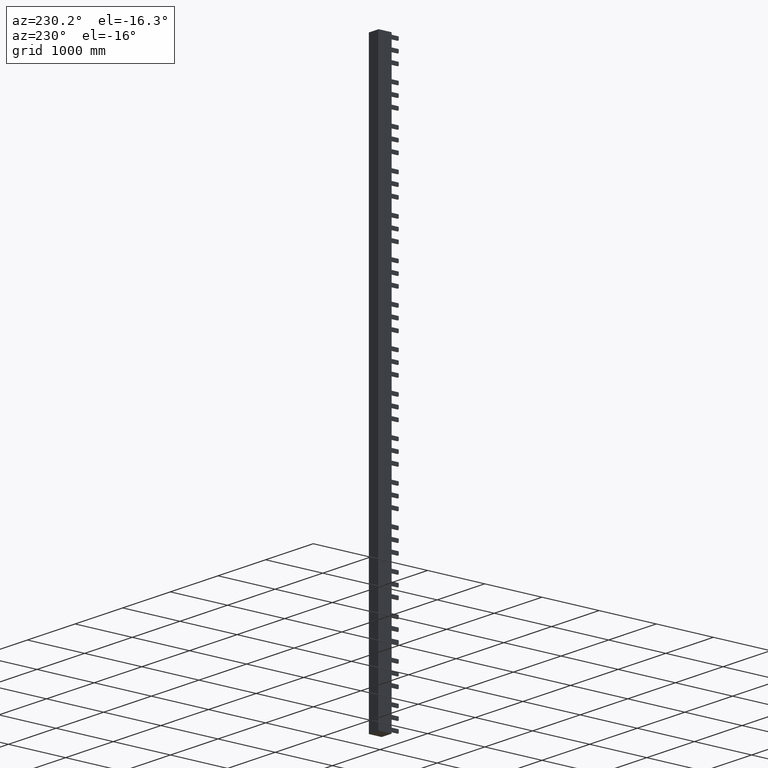
[diagram: clean part render]
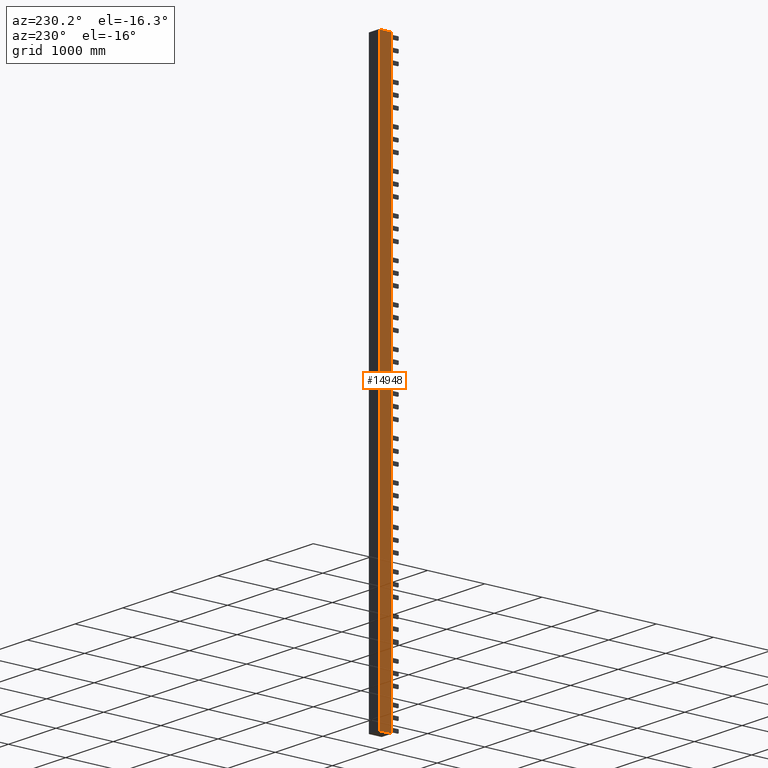
[diagram: same view with one face highlighted and labeled with its STEP entity id]
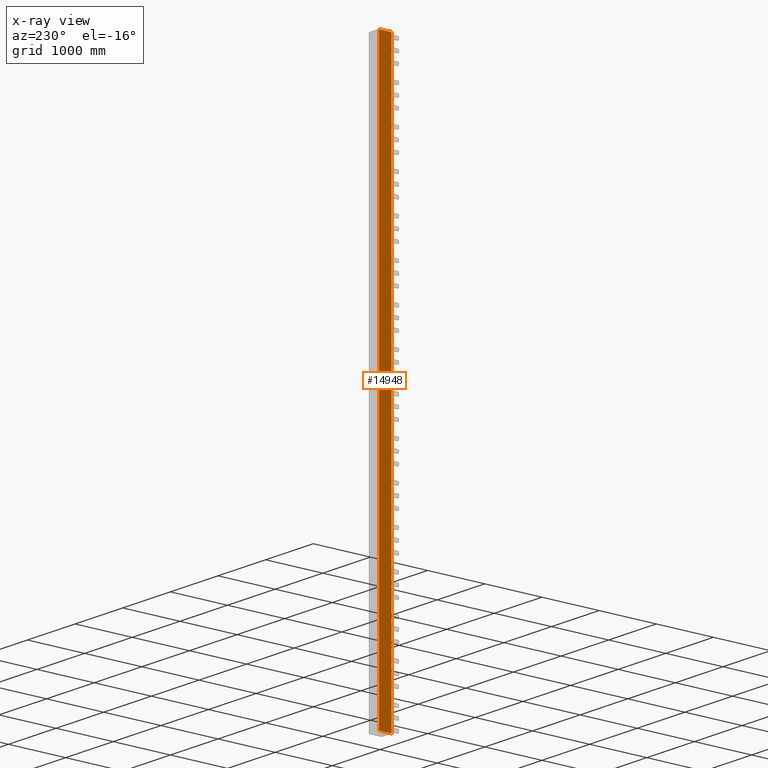
[diagram: x-ray of the same camera — body ghosted, the highlighted face saturated]
A machine part, auxiliary view. The second image highlights one B-rep face of the part: STEP entity #14948.
The next image is the same camera in x-ray: the body ghosted, the highlighted face saturated — about 0% of this face is hidden behind the body in this view.
In plain terms, the highlighted planar face has unit normal (-1, -0, 0).
Its self-contained STEP definition (entity closure, byte-faithful):
#14468=CARTESIAN_POINT('',(6698.0208871468094,6049.4066631202095,-10000.0));
#14469=VERTEX_POINT('',#14468);
#14477=CARTESIAN_POINT('',(6698.0208871467594,6266.4066631202095,-10000.0));
#14478=VERTEX_POINT('',#14477);
#14479=CARTESIAN_POINT('',(6698.0208871467594,6266.4066631202095,-10000.0));
#14480=DIRECTION('',(2.221347E-013,-1.0,0.0));
#14481=VECTOR('',#14480,216.99999999999909);
#14482=LINE('',#14479,#14481);
#14483=EDGE_CURVE('',#14478,#14469,#14482,.T.);
#14888=CARTESIAN_POINT('',(6698.0208871467594,6266.4066631202095,-180.0));
#14889=VERTEX_POINT('',#14888);
#14897=CARTESIAN_POINT('',(6698.0208871468058,6049.4066631202095,-180.0));
#14898=VERTEX_POINT('',#14897);
#14899=CARTESIAN_POINT('',(6698.0208871468094,6049.4066631202095,-180.0));
#14900=DIRECTION('',(-2.305171E-013,1.0,0.0));
#14901=VECTOR('',#14900,216.99999999999909);
#14902=LINE('',#14899,#14901);
#14903=EDGE_CURVE('',#14898,#14889,#14902,.T.);
#14921=CARTESIAN_POINT('',(6698.0208871468094,6049.4066631202095,-180.0));
#14922=DIRECTION('',(0.0,0.0,-1.0));
#14923=VECTOR('',#14922,9820.0);
#14924=LINE('',#14921,#14923);
#14925=EDGE_CURVE('',#14898,#14469,#14924,.T.);
#14932=CARTESIAN_POINT('',(6698.0208871467566,6276.4066631202131,0.0));
#14933=DIRECTION('',(-1.0,-2.224308E-013,0.0));
#14934=DIRECTION('',(0.0,0.0,1.0));
#14935=AXIS2_PLACEMENT_3D('',#14932,#14933,#14934);
#14936=PLANE('',#14935);
#14937=ORIENTED_EDGE('',*,*,#14903,.T.);
#14938=CARTESIAN_POINT('',(6698.0208871467594,6266.4066631202095,-10000.0));
#14939=DIRECTION('',(0.0,0.0,1.0));
#14940=VECTOR('',#14939,9820.0);
#14941=LINE('',#14938,#14940);
#14942=EDGE_CURVE('',#14478,#14889,#14941,.T.);
#14943=ORIENTED_EDGE('',*,*,#14942,.F.);
#14944=ORIENTED_EDGE('',*,*,#14483,.T.);
#14945=ORIENTED_EDGE('',*,*,#14925,.F.);
#14946=EDGE_LOOP('',(#14937,#14943,#14944,#14945));
#14947=FACE_OUTER_BOUND('',#14946,.T.);
#14948=ADVANCED_FACE('',(#14947),#14936,.T.);